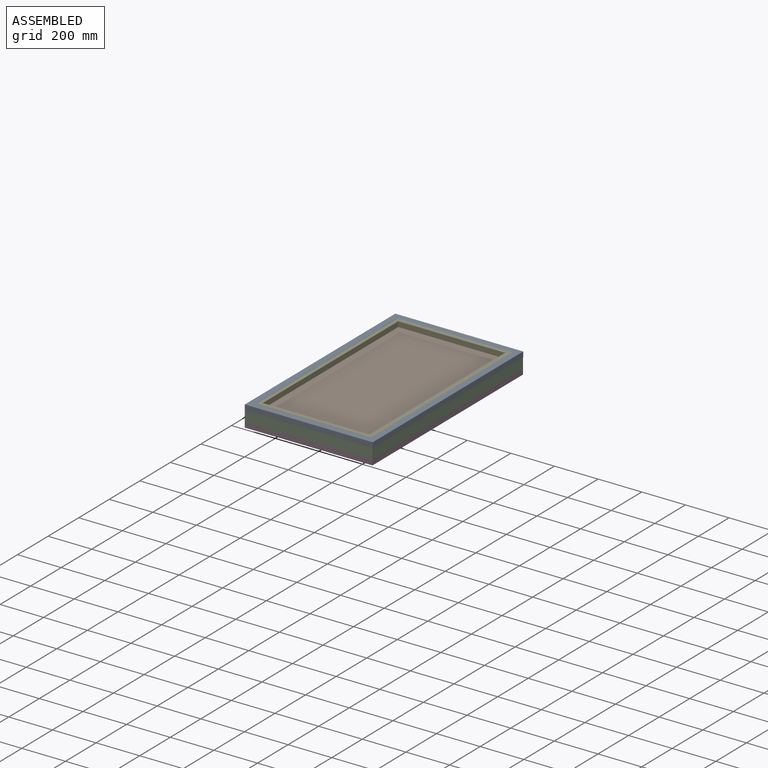
[diagram: assembled view]
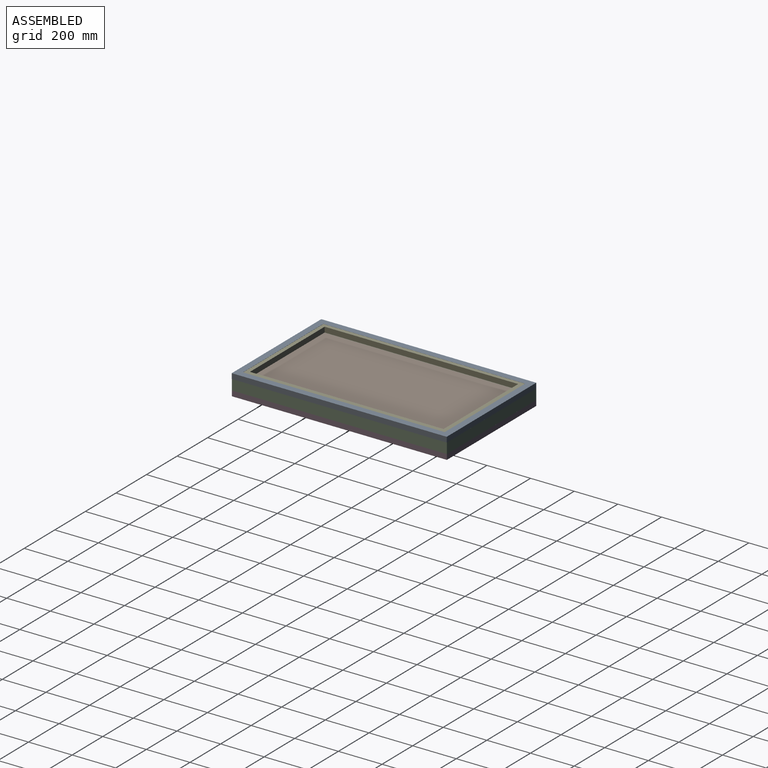
[diagram: assembled view, second angle]
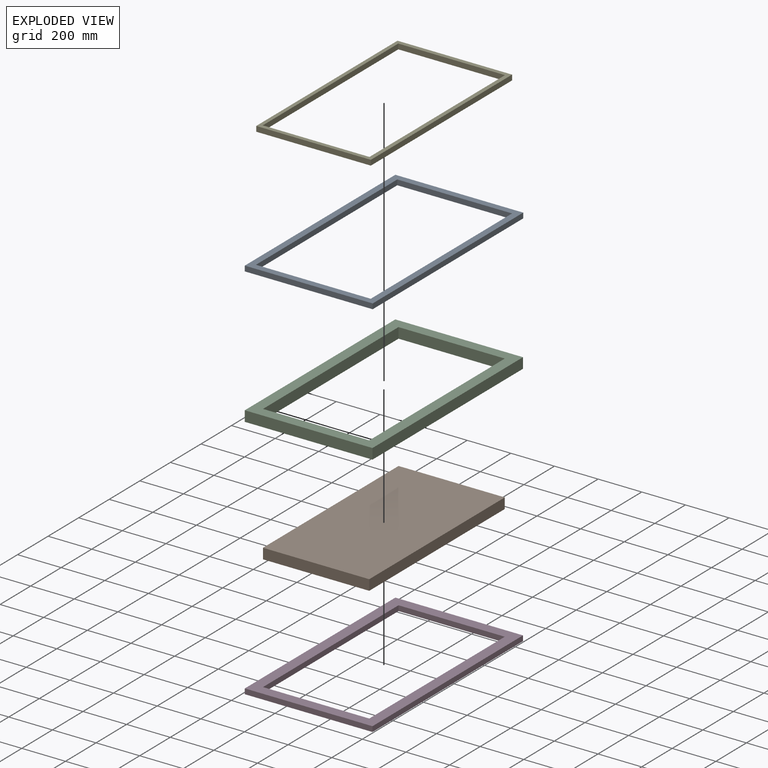
[diagram: exploded view]
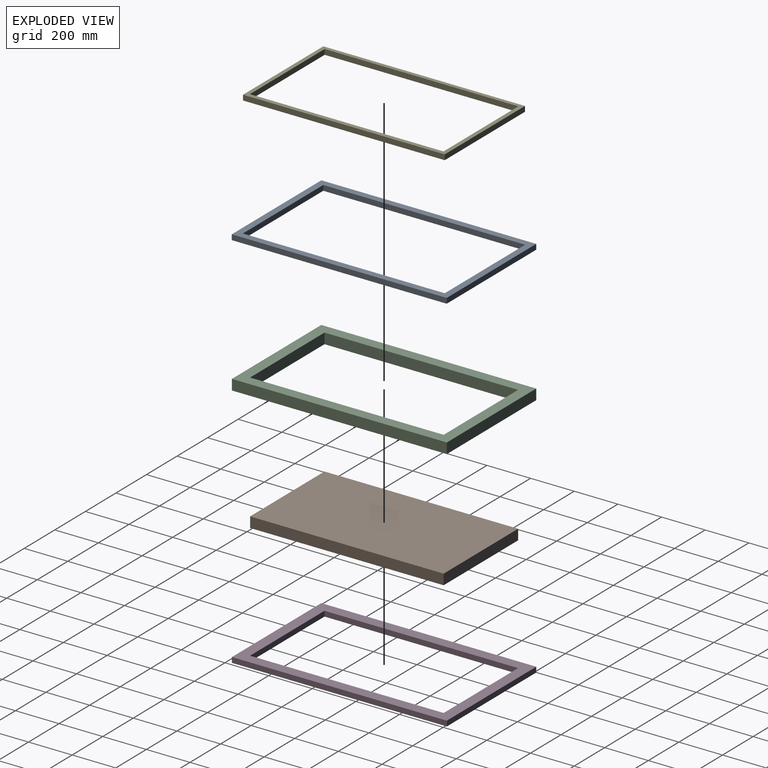
[diagram: exploded view, second angle]
ASSEMBLY  parts=5 mates=4
PART A: 10 faces, bbox 586x985x24 mm
  f0: plane 526x24mm, normal (0,1,0), area 12624mm2, adj f1,f7,f8,f9
  f1: plane 925x24mm, normal (1,0,0), area 22200mm2, adj f0,f2,f8,f9
  f2: plane 526x24mm, normal (0,-1,0), area 12624mm2, adj f1,f7,f8,f9
  f3: plane 985x24mm, normal (1,0,0), area 23640mm2, adj f4,f6,f8,f9
  f4: plane 586x24mm, normal (0,1,0), area 14064mm2, adj f3,f5,f8,f9
  f5: plane 985x24mm, normal (-1,0,0), area 23640mm2, adj f4,f6,f8,f9
  f6: plane 586x24mm, normal (0,-1,0), area 14064mm2, adj f3,f5,f8,f9
  f7: plane 925x24mm, normal (-1,0,0), area 22200mm2, adj f0,f2,f8,f9
  f8: plane 985x586mm, normal (0,0,1), area 90660mm2, adj f0,f1,f2,f3,f4,f5,f6,f7
  f9: plane 985x586mm, normal (0,0,-1), area 90660mm2, adj f0,f1,f2,f3,f4,f5,f6,f7
PART B: 6 faces, bbox 487x887x48 mm
  f0: plane 887x48mm, normal (1,0,0), area 42576mm2, adj f1,f3,f4,f5
  f1: plane 487x48mm, normal (0,1,0), area 23376mm2, adj f0,f2,f4,f5
  f2: plane 887x48mm, normal (-1,0,0), area 42576mm2, adj f1,f3,f4,f5
  f3: plane 487x48mm, normal (0,-1,0), area 23376mm2, adj f0,f2,f4,f5
  f4: plane 887x487mm, normal (0,0,1), area 431969mm2, adj f0,f1,f2,f3
  f5: plane 887x487mm, normal (0,0,-1), area 431969mm2, adj f0,f1,f2,f3
PART C: 10 faces, bbox 585x985x48 mm
  f0: plane 985x48mm, normal (1,0,0), area 47280mm2, adj f1,f7,f8,f9
  f1: plane 585x48mm, normal (0,1,0), area 28080mm2, adj f0,f2,f8,f9
  f2: plane 985x48mm, normal (-1,0,0), area 47280mm2, adj f1,f7,f8,f9
  f3: plane 487x48mm, normal (0,-1,0), area 23376mm2, adj f4,f6,f8,f9
  f4: plane 887x48mm, normal (-1,0,0), area 42576mm2, adj f3,f5,f8,f9
  f5: plane 487x48mm, normal (0,1,0), area 23376mm2, adj f4,f6,f8,f9
  f6: plane 887x48mm, normal (1,0,0), area 42576mm2, adj f3,f5,f8,f9
  f7: plane 585x48mm, normal (0,-1,0), area 28080mm2, adj f0,f2,f8,f9
  f8: plane 985x585mm, normal (0,0,1), area 144256mm2, adj f0,f1,f2,f3,f4,f5,f6,f7
  f9: plane 985x585mm, normal (0,0,-1), area 144256mm2, adj f0,f1,f2,f3,f4,f5,f6,f7
PART D: 10 faces, bbox 585x985x24 mm
  f0: plane 985x24mm, normal (1,0,0), area 23640mm2, adj f1,f7,f8,f9
  f1: plane 585x24mm, normal (0,1,0), area 14040mm2, adj f0,f2,f8,f9
  f2: plane 985x24mm, normal (-1,0,0), area 23640mm2, adj f1,f7,f8,f9
  f3: plane 487x24mm, normal (0,-1,0), area 11688mm2, adj f4,f6,f8,f9
  f4: plane 887x24mm, normal (-1,0,0), area 21288mm2, adj f3,f5,f8,f9
  f5: plane 487x24mm, normal (0,1,0), area 11688mm2, adj f4,f6,f8,f9
  f6: plane 887x24mm, normal (1,0,0), area 21288mm2, adj f3,f5,f8,f9
  f7: plane 585x24mm, normal (0,-1,0), area 14040mm2, adj f0,f2,f8,f9
  f8: plane 985x585mm, normal (0,0,1), area 144256mm2, adj f0,f1,f2,f3,f4,f5,f6,f7
  f9: plane 985x585mm, normal (0,0,-1), area 144256mm2, adj f0,f1,f2,f3,f4,f5,f6,f7
PART E: 10 faces, bbox 525.2x924.2x24 mm
  f0: plane 525.15x24mm, normal (0,-1,0), area 12603.6mm2, adj f1,f7,f8,f9
  f1: plane 924.2x24mm, normal (1,0,0), area 22180.9mm2, adj f0,f2,f8,f9
  f2: plane 525.15x24mm, normal (0,1,0), area 12603.6mm2, adj f1,f7,f8,f9
  f3: plane 489x24mm, normal (0,-1,0), area 11736mm2, adj f4,f6,f8,f9
  f4: plane 887x24mm, normal (-1,0,0), area 21288mm2, adj f3,f5,f8,f9
  f5: plane 489x24mm, normal (0,1,0), area 11736mm2, adj f4,f6,f8,f9
  f6: plane 887x24mm, normal (1,0,0), area 21288mm2, adj f3,f5,f8,f9
  f7: plane 924.2x24mm, normal (-1,0,0), area 22180.9mm2, adj f0,f2,f8,f9
  f8: plane 924.2x525.15mm, normal (0,0,1), area 51604.1mm2, adj f0,f1,f2,f3,f4,f5,f6,f7
  f9: plane 924.2x525.15mm, normal (0,0,-1), area 51604.1mm2, adj f0,f1,f2,f3,f4,f5,f6,f7
PLACE A t=(322.51,138.46,-16.46)mm
PLACE B t=(323.76,135.95,-40.46)mm
PLACE C t=(323.76,135.95,-40.46)mm
PLACE D t=(317.81,141.88,-76.46)mm
PLACE E t=(323.36,139.26,-4.46)mm
MATE fastened C.f9 <-> D.f8  axis (0,0,-1) through (80.26,579.45,-64.46)mm
MATE fastened A.f9 <-> C.f8  axis (0,0,-1) through (31.26,628.45,-16.46)mm
MATE fastened E.f8 <-> A.f8  axis (0,0,1) through (587.26,598.45,7.54)mm
MATE fastened B.f4 <-> C.f8  axis (0,0,1) through (80.26,579.45,-16.46)mm
